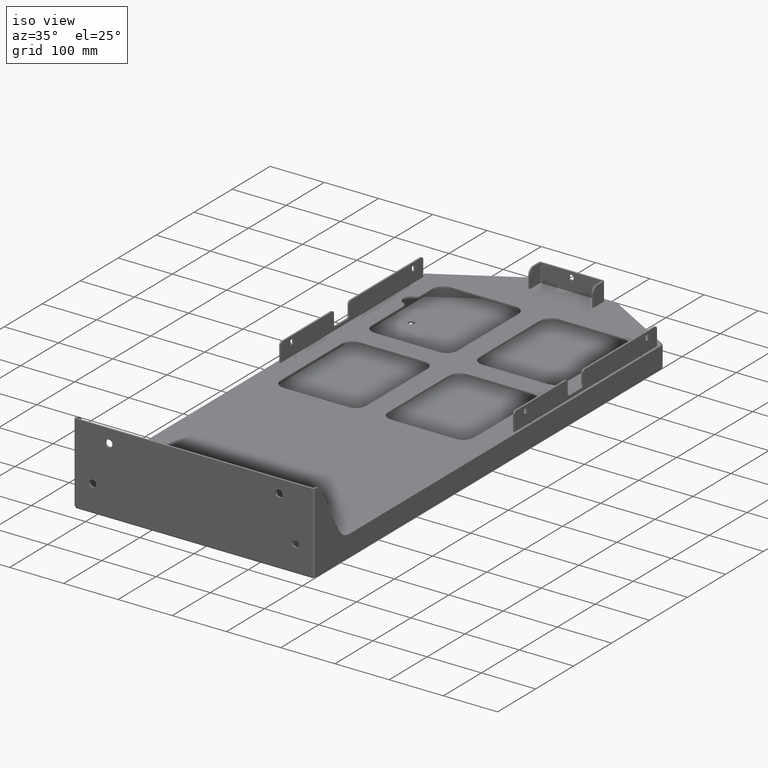
[diagram: clean part render]
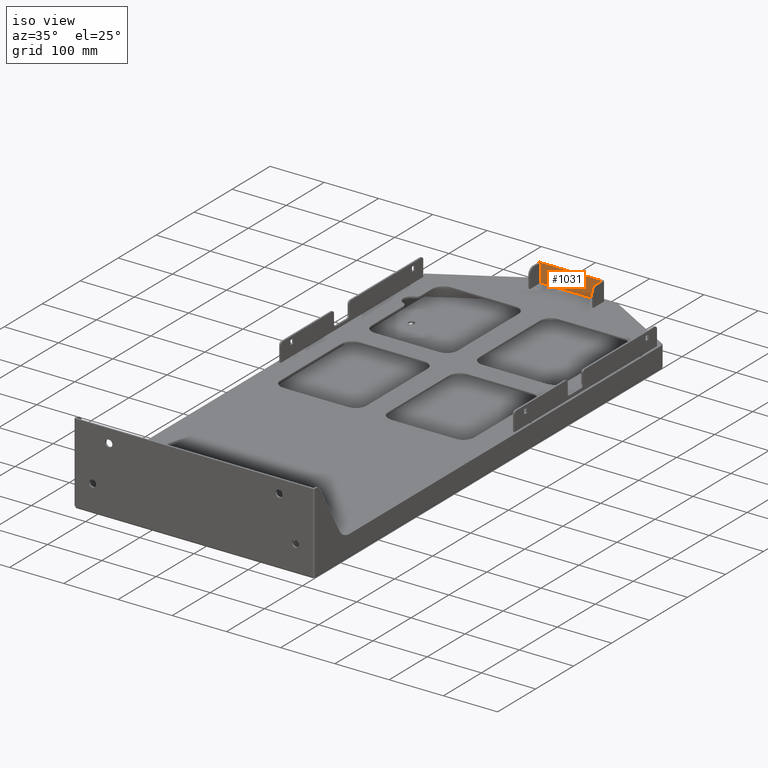
[diagram: same view with one face highlighted and labeled with its STEP entity id]
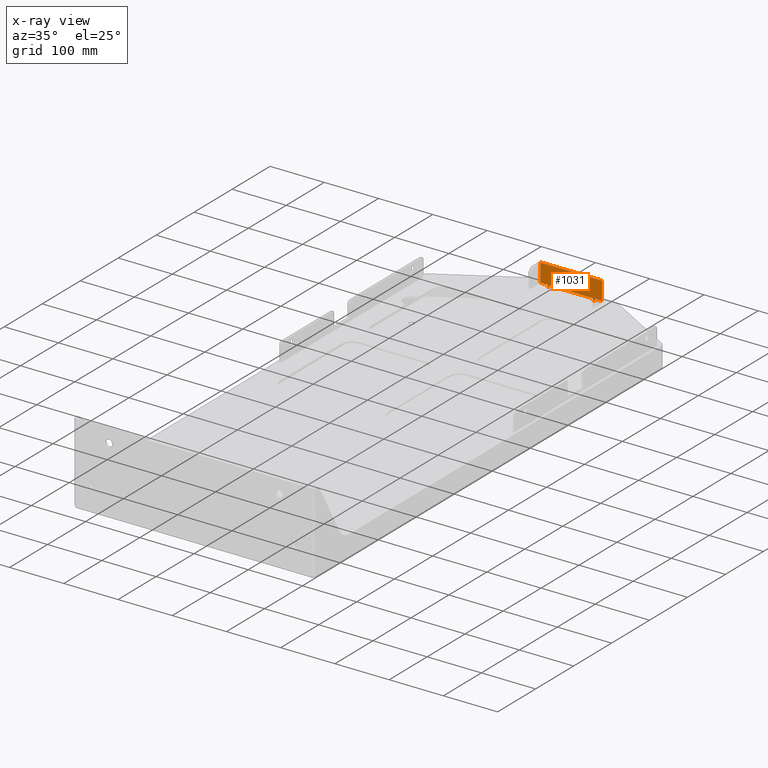
[diagram: x-ray of the same camera — body ghosted, the highlighted face saturated]
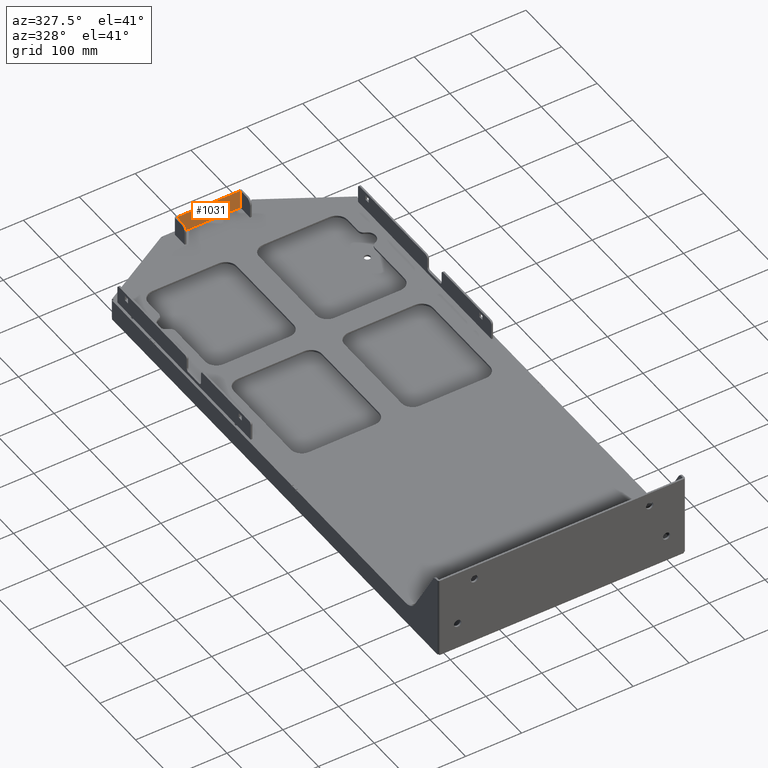
[diagram: same view with one face highlighted and labeled with its STEP entity id]
A machine part, iso view. The second image highlights one B-rep face of the part: STEP entity #1031.
The next image is the same camera in x-ray: the body ghosted, the highlighted face saturated — about 0% of this face is hidden behind the body in this view.
A second angle (auxiliary view) of the same face is appended — the face is thin or edge-on in the first view.
In plain terms, the highlighted planar face has unit normal (-0, 1, 0).
Its self-contained STEP definition (entity closure, byte-faithful):
#277 = ORIENTED_EDGE ( 'NONE', *, *, #1179, .T. ) ;
#998 = EDGE_LOOP ( 'NONE', ( #277, #1204, #1202, #1128 ) ) ;
#1031 = ADVANCED_FACE ( 'NONE', ( #12779, #12900 ), #13021, .F. ) ;
#1111 = VERTEX_POINT ( 'NONE', #13143 ) ;
#1112 = EDGE_CURVE ( 'NONE', #1133, #1181, #13163, .T. ) ;
#1113 = ORIENTED_EDGE ( 'NONE', *, *, #1165, .T. ) ;
#1114 = EDGE_CURVE ( 'NONE', #1185, #1166, #13335, .T. ) ;
#1116 = ORIENTED_EDGE ( 'NONE', *, *, #1112, .T. ) ;
#1118 = ORIENTED_EDGE ( 'NONE', *, *, #1138, .T. ) ;
#1126 = VERTEX_POINT ( 'NONE', #13165 ) ;
#1127 = VERTEX_POINT ( 'NONE', #13315 ) ;
#1128 = ORIENTED_EDGE ( 'NONE', *, *, #1129, .T. ) ;
#1129 = EDGE_CURVE ( 'NONE', #1180, #1183, #13159, .T. ) ;
#1130 = EDGE_CURVE ( 'NONE', #1126, #1127, #13182, .T. ) ;
#1131 = ORIENTED_EDGE ( 'NONE', *, *, #1163, .F. ) ;
#1132 = EDGE_LOOP ( 'NONE', ( #1136, #1162, #1131, #1113, #1203, #1178, #1116, #1228, #1149, #1137, #1118, #1168 ) ) ;
#1133 = VERTEX_POINT ( 'NONE', #13316 ) ;
#1134 = VERTEX_POINT ( 'NONE', #13178 ) ;
#1135 = EDGE_CURVE ( 'NONE', #1184, #1126, #13175, .T. ) ;
#1136 = ORIENTED_EDGE ( 'NONE', *, *, #1130, .F. ) ;
#1137 = ORIENTED_EDGE ( 'NONE', *, *, #1206, .F. ) ;
#1138 = EDGE_CURVE ( 'NONE', #1151, #1142, #13311, .T. ) ;
#1140 = EDGE_CURVE ( 'NONE', #1142, #1127, #13307, .T. ) ;
#1142 = VERTEX_POINT ( 'NONE', #13302 ) ;
#1149 = ORIENTED_EDGE ( 'NONE', *, *, #1167, .F. ) ;
#1151 = VERTEX_POINT ( 'NONE', #13157 ) ;
#1162 = ORIENTED_EDGE ( 'NONE', *, *, #1135, .F. ) ;
#1163 = EDGE_CURVE ( 'NONE', #1134, #1184, #13197, .T. ) ;
#1164 = EDGE_CURVE ( 'NONE', #1133, #1185, #13190, .T. ) ;
#1165 = EDGE_CURVE ( 'NONE', #1134, #1166, #13186, .T. ) ;
#1166 = VERTEX_POINT ( 'NONE', #13262 ) ;
#1167 = EDGE_CURVE ( 'NONE', #1176, #1111, #13257, .T. ) ;
#1168 = ORIENTED_EDGE ( 'NONE', *, *, #1140, .T. ) ;
#1176 = VERTEX_POINT ( 'NONE', #13222 ) ;
#1177 = EDGE_CURVE ( 'NONE', #1181, #1111, #12987, .T. ) ;
#1178 = ORIENTED_EDGE ( 'NONE', *, *, #1164, .F. ) ;
#1179 = EDGE_CURVE ( 'NONE', #1183, #1201, #13582, .T. ) ;
#1180 = VERTEX_POINT ( 'NONE', #13568 ) ;
#1181 = VERTEX_POINT ( 'NONE', #13566 ) ;
#1182 = VERTEX_POINT ( 'NONE', #13433 ) ;
#1183 = VERTEX_POINT ( 'NONE', #13529 ) ;
#1184 = VERTEX_POINT ( 'NONE', #13409 ) ;
#1185 = VERTEX_POINT ( 'NONE', #13408 ) ;
#1201 = VERTEX_POINT ( 'NONE', #13346 ) ;
#1202 = ORIENTED_EDGE ( 'NONE', *, *, #1205, .T. ) ;
#1203 = ORIENTED_EDGE ( 'NONE', *, *, #1114, .F. ) ;
#1204 = ORIENTED_EDGE ( 'NONE', *, *, #1207, .T. ) ;
#1205 = EDGE_CURVE ( 'NONE', #1182, #1180, #13362, .T. ) ;
#1206 = EDGE_CURVE ( 'NONE', #1151, #1176, #13595, .T. ) ;
#1207 = EDGE_CURVE ( 'NONE', #1201, #1182, #13591, .T. ) ;
#1228 = ORIENTED_EDGE ( 'NONE', *, *, #1177, .T. ) ;
#12779 = FACE_BOUND ( 'NONE', #998, .T. ) ;
#12900 = FACE_OUTER_BOUND ( 'NONE', #1132, .T. ) ;
#12986 = CARTESIAN_POINT ( 'NONE',  ( -59.99999999999998600, 993.5000000000002300, 39.99999999999999300 ) ) ;
#12987 = LINE ( 'NONE', #12986, #13225 ) ;
#12991 = DIRECTION ( 'NONE',  ( -2.428612866367532100E-017, 1.000000000000000000, 2.020952849512982200E-016 ) ) ;
#12992 = CARTESIAN_POINT ( 'NONE',  ( -59.99999999999998600, 993.5000000000002300, 73.99999999999998600 ) ) ;
#13021 = PLANE ( 'NONE',  #13038 ) ;
#13037 = DIRECTION ( 'NONE',  ( 0.0000000000000000000, -2.020952849512982200E-016, 1.000000000000000000 ) ) ;
#13038 = AXIS2_PLACEMENT_3D ( 'NONE', #12992, #12991, #13037 ) ;
#13143 = CARTESIAN_POINT ( 'NONE',  ( 39.99999999999997900, 993.5000000000002300, 39.99999999999995000 ) ) ;
#13157 = CARTESIAN_POINT ( 'NONE',  ( 43.99999999999998600, 993.5000000000002300, 37.00000000000000000 ) ) ;
#13159 = LINE ( 'NONE', #13329, #13317 ) ;
#13160 = DIRECTION ( 'NONE',  ( 0.0000000000000000000, -2.020952849512982500E-016, 1.000000000000000000 ) ) ;
#13161 = VECTOR ( 'NONE', #13160, 1000.000000000000000 ) ;
#13162 = CARTESIAN_POINT ( 'NONE',  ( -40.00000000000002100, 993.5000000000003400, 37.00000000000001400 ) ) ;
#13163 = LINE ( 'NONE', #13162, #13161 ) ;
#13165 = CARTESIAN_POINT ( 'NONE',  ( 56.89999999999996300, 993.5000000000002300, 74.00000000000005700 ) ) ;
#13172 = DIRECTION ( 'NONE',  ( 1.000000000000000000, 1.214306433183765000E-017, 0.0000000000000000000 ) ) ;
#13173 = VECTOR ( 'NONE', #13172, 1000.000000000000000 ) ;
#13174 = CARTESIAN_POINT ( 'NONE',  ( -59.99999999999998600, 993.5000000000002300, 73.99999999999998600 ) ) ;
#13175 = LINE ( 'NONE', #13174, #13173 ) ;
#13178 = CARTESIAN_POINT ( 'NONE',  ( -56.90000000000002000, 993.5000000000002300, 40.00000000000002100 ) ) ;
#13179 = DIRECTION ( 'NONE',  ( 0.0000000000000000000, 2.020952849512982500E-016, -1.000000000000000000 ) ) ;
#13180 = VECTOR ( 'NONE', #13179, 1000.000000000000000 ) ;
#13181 = CARTESIAN_POINT ( 'NONE',  ( 56.89999999999990600, 993.5000000000002300, 40.00000000000000700 ) ) ;
#13182 = LINE ( 'NONE', #13181, #13180 ) ;
#13183 = DIRECTION ( 'NONE',  ( 0.0000000000000000000, -2.020952849512982500E-016, 1.000000000000000000 ) ) ;
#13185 = CARTESIAN_POINT ( 'NONE',  ( -59.99999999999998600, 993.5000000000002300, 39.99999999999999300 ) ) ;
#13186 = LINE ( 'NONE', #13185, #13261 ) ;
#13187 = DIRECTION ( 'NONE',  ( -1.000000000000000000, -1.214306433183765000E-017, 0.0000000000000000000 ) ) ;
#13188 = VECTOR ( 'NONE', #13187, 1000.000000000000000 ) ;
#13189 = CARTESIAN_POINT ( 'NONE',  ( -44.00000000000000000, 993.5000000000002300, 36.99999999999997900 ) ) ;
#13190 = LINE ( 'NONE', #13189, #13188 ) ;
#13194 = DIRECTION ( 'NONE',  ( 0.0000000000000000000, -2.020952849512982500E-016, 1.000000000000000000 ) ) ;
#13195 = VECTOR ( 'NONE', #13194, 1000.000000000000000 ) ;
#13196 = CARTESIAN_POINT ( 'NONE',  ( -56.90000000000003400, 993.5000000000002300, 74.00000000000001400 ) ) ;
#13197 = LINE ( 'NONE', #13196, #13195 ) ;
#13222 = CARTESIAN_POINT ( 'NONE',  ( 39.99999999999996400, 993.5000000000002300, 37.00000000000004300 ) ) ;
#13225 = VECTOR ( 'NONE', #13258, 1000.000000000000000 ) ;
#13254 = DIRECTION ( 'NONE',  ( 0.0000000000000000000, -2.020952849512982500E-016, 1.000000000000000000 ) ) ;
#13255 = VECTOR ( 'NONE', #13254, 1000.000000000000000 ) ;
#13256 = CARTESIAN_POINT ( 'NONE',  ( 39.99999999999996400, 993.5000000000002300, 37.00000000000004300 ) ) ;
#13257 = LINE ( 'NONE', #13256, #13255 ) ;
#13258 = DIRECTION ( 'NONE',  ( 1.000000000000000000, 1.214306433183765000E-017, 0.0000000000000000000 ) ) ;
#13260 = DIRECTION ( 'NONE',  ( 1.000000000000000000, 1.214306433183765000E-017, 0.0000000000000000000 ) ) ;
#13261 = VECTOR ( 'NONE', #13260, 1000.000000000000000 ) ;
#13262 = CARTESIAN_POINT ( 'NONE',  ( -44.00000000000004300, 993.5000000000002300, 40.00000000000001400 ) ) ;
#13302 = CARTESIAN_POINT ( 'NONE',  ( 43.99999999999994300, 993.5000000000002300, 40.00000000000002100 ) ) ;
#13304 = DIRECTION ( 'NONE',  ( 1.000000000000000000, 1.214306433183765000E-017, 0.0000000000000000000 ) ) ;
#13305 = VECTOR ( 'NONE', #13304, 1000.000000000000000 ) ;
#13306 = CARTESIAN_POINT ( 'NONE',  ( -59.99999999999998600, 993.5000000000002300, 39.99999999999999300 ) ) ;
#13307 = LINE ( 'NONE', #13306, #13305 ) ;
#13308 = DIRECTION ( 'NONE',  ( 0.0000000000000000000, -2.020952849512982500E-016, 1.000000000000000000 ) ) ;
#13309 = VECTOR ( 'NONE', #13308, 1000.000000000000000 ) ;
#13310 = CARTESIAN_POINT ( 'NONE',  ( 43.99999999999998600, 993.5000000000002300, 37.00000000000000000 ) ) ;
#13311 = LINE ( 'NONE', #13310, #13309 ) ;
#13315 = CARTESIAN_POINT ( 'NONE',  ( 56.89999999999990600, 993.5000000000002300, 40.00000000000000700 ) ) ;
#13316 = CARTESIAN_POINT ( 'NONE',  ( -40.00000000000002100, 993.5000000000003400, 37.00000000000001400 ) ) ;
#13317 = VECTOR ( 'NONE', #13183, 1000.000000000000000 ) ;
#13329 = CARTESIAN_POINT ( 'NONE',  ( -4.250000000000047100, 993.5000000000002300, 59.74999999999997900 ) ) ;
#13332 = DIRECTION ( 'NONE',  ( 0.0000000000000000000, -2.020952849512982500E-016, 1.000000000000000000 ) ) ;
#13333 = VECTOR ( 'NONE', #13332, 1000.000000000000000 ) ;
#13334 = CARTESIAN_POINT ( 'NONE',  ( -44.00000000000000000, 993.5000000000002300, 36.99999999999997900 ) ) ;
#13335 = LINE ( 'NONE', #13334, #13333 ) ;
#13346 = CARTESIAN_POINT ( 'NONE',  ( 4.249999999999933400, 993.5000000000002300, 68.24999999999997200 ) ) ;
#13362 = LINE ( 'NONE', #13599, #13598 ) ;
#13408 = CARTESIAN_POINT ( 'NONE',  ( -44.00000000000000000, 993.5000000000002300, 36.99999999999997900 ) ) ;
#13409 = CARTESIAN_POINT ( 'NONE',  ( -56.90000000000004800, 993.5000000000002300, 74.00000000000001400 ) ) ;
#13433 = CARTESIAN_POINT ( 'NONE',  ( 4.250000000000044400, 993.5000000000002300, 59.74999999999997200 ) ) ;
#13529 = CARTESIAN_POINT ( 'NONE',  ( -4.250000000000008900, 993.5000000000002300, 68.24999999999997200 ) ) ;
#13566 = CARTESIAN_POINT ( 'NONE',  ( -40.00000000000000700, 993.5000000000003400, 39.99999999999997900 ) ) ;
#13568 = CARTESIAN_POINT ( 'NONE',  ( -4.250000000000051500, 993.5000000000002300, 59.74999999999997900 ) ) ;
#13579 = DIRECTION ( 'NONE',  ( 1.000000000000000000, 1.214306433183765000E-017, 0.0000000000000000000 ) ) ;
#13580 = VECTOR ( 'NONE', #13579, 1000.000000000000000 ) ;
#13581 = CARTESIAN_POINT ( 'NONE',  ( 4.249999999999933400, 993.5000000000002300, 68.24999999999997200 ) ) ;
#13582 = LINE ( 'NONE', #13581, #13580 ) ;
#13587 = DIRECTION ( 'NONE',  ( 0.0000000000000000000, 2.020952849512982500E-016, -1.000000000000000000 ) ) ;
#13588 = VECTOR ( 'NONE', #13587, 1000.000000000000000 ) ;
#13589 = CARTESIAN_POINT ( 'NONE',  ( 4.250000000000044400, 993.5000000000002300, 59.74999999999997200 ) ) ;
#13591 = LINE ( 'NONE', #13589, #13588 ) ;
#13592 = DIRECTION ( 'NONE',  ( -1.000000000000000000, -1.214306433183765000E-017, 0.0000000000000000000 ) ) ;
#13593 = VECTOR ( 'NONE', #13592, 1000.000000000000000 ) ;
#13594 = CARTESIAN_POINT ( 'NONE',  ( 43.99999999999998600, 993.5000000000002300, 37.00000000000000000 ) ) ;
#13595 = LINE ( 'NONE', #13594, #13593 ) ;
#13597 = DIRECTION ( 'NONE',  ( -1.000000000000000000, 3.469446951953616700E-017, 5.551115123125786400E-017 ) ) ;
#13598 = VECTOR ( 'NONE', #13597, 1000.000000000000000 ) ;
#13599 = CARTESIAN_POINT ( 'NONE',  ( 4.250000000000044400, 993.5000000000002300, 59.74999999999997200 ) ) ;